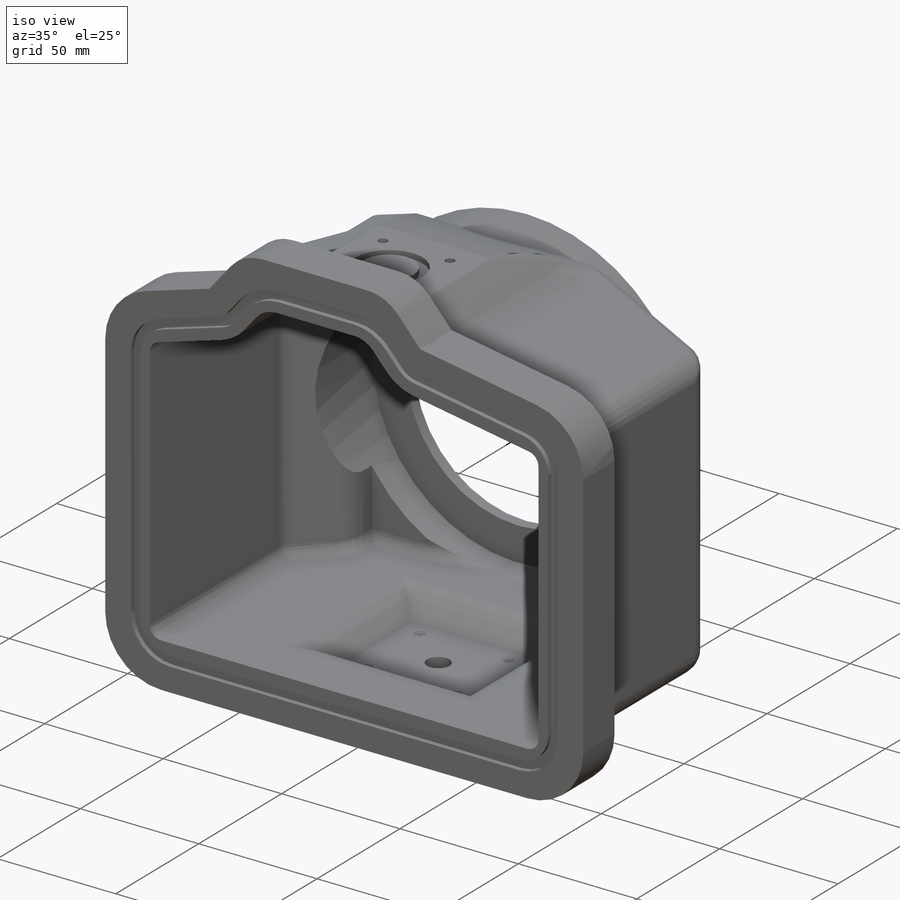
[diagram: iso view]
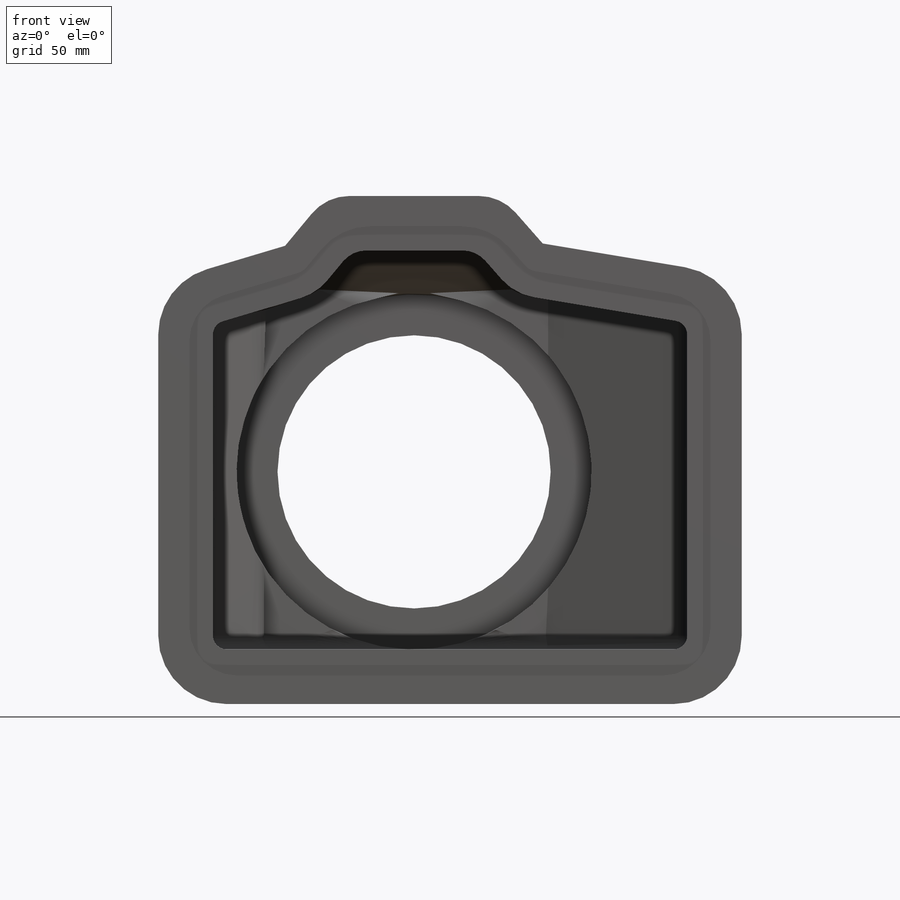
[diagram: front view]
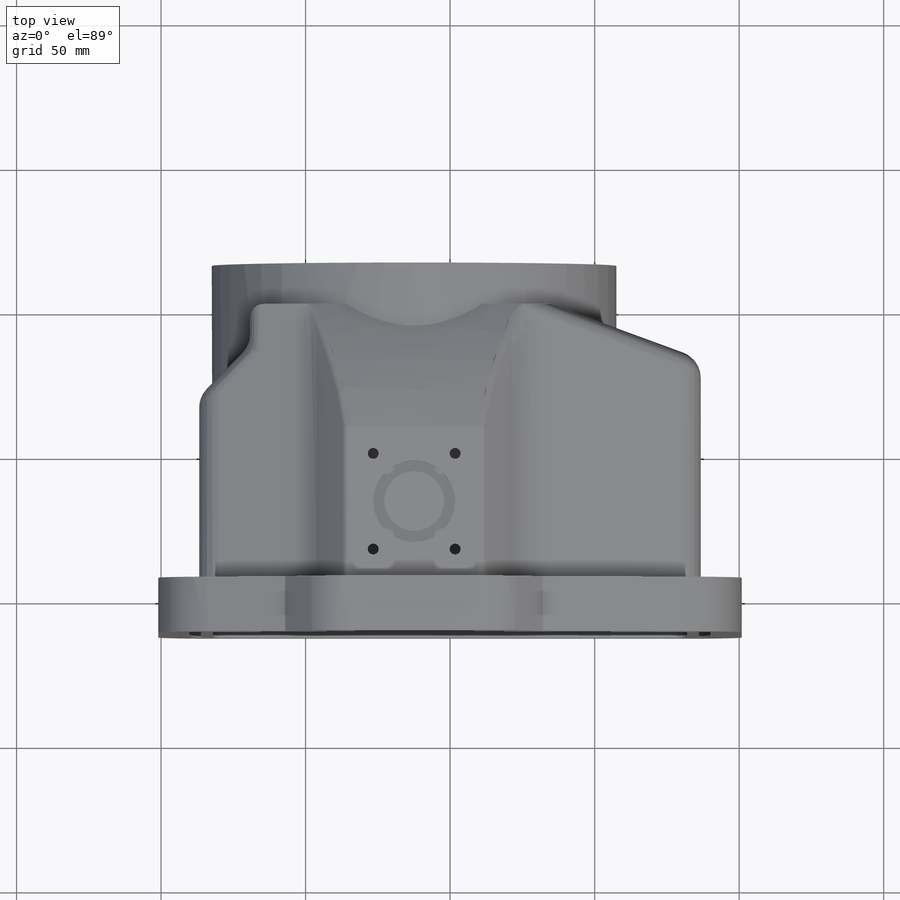
[diagram: top view]
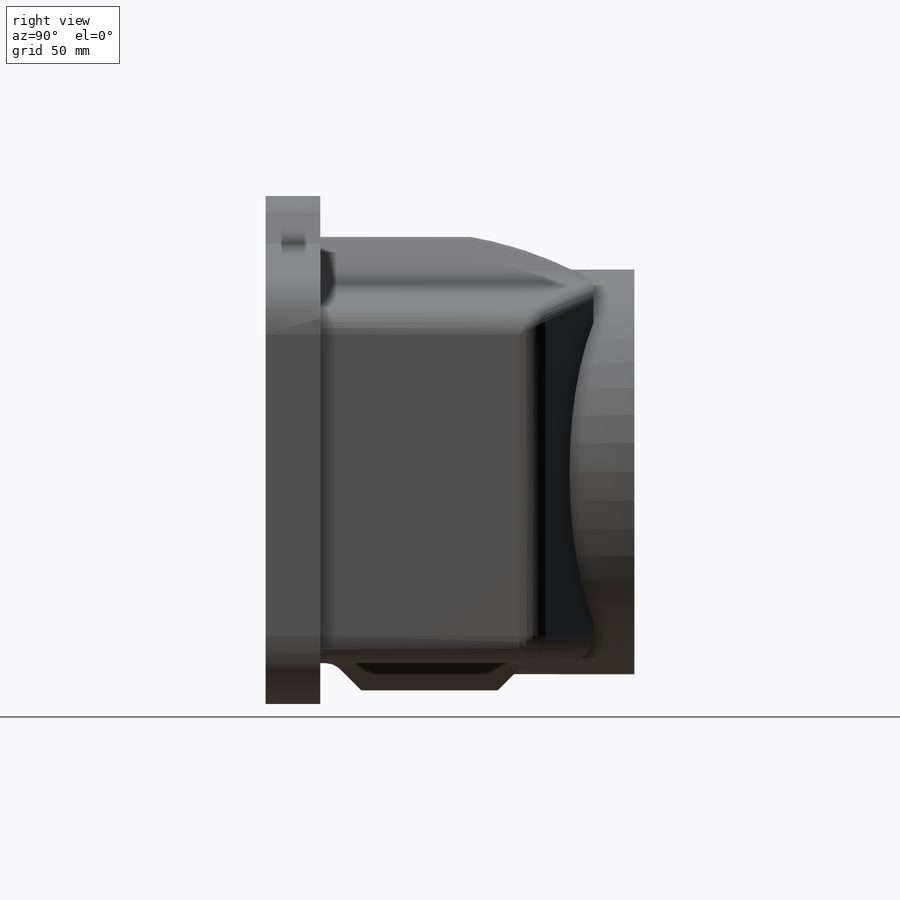
[diagram: right view]
SOLIDWORKS PART (.sldprt)
format: sldprt  version: not decoded by parser v0  size: 1,870,848 bytes
history: native  units: mm
features: sketch x24, cut_extrude x10, fillet x9, plane x6, extrude x5, shell x2, mirror x2, material x1, helix x1, sweep x1 (+8 scaffold rows collapsed)
feature tree (69):
  scaffold x8  (default folders/planes/origin — collapsed)
  material  "Material <sin especificar>"
  plane  "Alzado"
  plane  "Planta"
  plane  "Vista lateral"
  sketch  "Croquis1"
  sketch  "Croquis2"
  sketch  "Imagen de croquis2"
  sketch  "Croquis3"  dims[D1=20.0mm D2=7.5mm D3=15.0mm D6=30.0mm D4=150.0mm D5=117.5mm D7=20.0mm]
  sketch  "Croquis5"  dims[D1=190.0mm D2=72.0mm D3=12.0mm]
  sketch  "Croquis6"
  extrude  "Saliente-Extruir1"  Depth=140mm
  fillet  "Redondeo1"  Radius=10mm
  sketch  "Croquis8"  dims[c1.D1=85.0mm c1.D2=65.0mm c1.D3=190.0mm c1.D4=~33.79949mm c2.D4=45.0deg c2.D5=25.0mm c2.D6=~56.720844mm c3.D6=110.0deg c3.D7=55.0mm c3.D8=~91.81022mm]
  cut_extrude  "Cortar-Extruir1"  [1 undecoded]
  sketch  "Croquis9"  dims[D2=135.0mm D1=60.0mm]
  cut_extrude  "Cortar-Extruir2"  Depth=140mm
  fillet  "Redondeo2"  Radius=3mm
  fillet  "Redondeo3"  Radius=15mm
  sketch  "Croquis10"  dims[c1.D2=~103.077321mm c1.D1=112.0mm c2.D2=70.0mm]
  extrude  "Saliente-Extruir2"  Depth=15mm
  sketch  "Croquis11"  dims[D1=20.0mm D2=50.0mm D3=60.0mm]
  extrude  "Saliente-Extruir3"  Depth=15mm
  fillet  "Redondeo4"  Radius=7.5mm
  fillet  "Redondeo5"  Radius=1mm
  fillet  "Redondeo6"  Radius=10mm
  fillet  "Redondeo9"  Radius=5mm
  fillet  "Redondeo10"  Radius=10mm
  shell  "Vaciado1"  Thickness=5mm
  sketch  "Croquis12"  dims[D1=100.0mm]
  cut_extrude  "Cortar-Extruir3"  [1 undecoded]
  sketch  "Croquis13"  dims[D1=15.0mm]
  extrude  "Saliente-Extruir4"  Depth=5mm
  sketch  "Croquis14"  dims[c1.D1=26.0mm c1.D2=~30.687304mm c1.D3=26.0mm c2.D2=4.0mm c2.D3=2.0mm]
  cut_extrude  "Cortar-Extruir4"  Depth=2.4mm
  sketch  "Croquis16"  dims[c1.D1=30.0mm c1.D2=22.0mm c1.D3=~25.729783mm c1.D4=26.0mm c2.D3=2.0mm]
  cut_extrude  "Cortar-Extruir5"  Depth=2.4mm
  sketch  "Croquis17"  dims[D1=10.0mm]
  cut_extrude  "Cortar-Extruir6"  [1 undecoded]
  sketch  "Croquis19"
  sketch  "Croquis20"  dims[D3=4.0mm D1=34.0mm D2=40.0mm]
  cut_extrude  "Cortar-Extruir7"  [1 undecoded]
  sketch  "Croquis21"
  helix  "Hélice/Espiral1"  Pitch=5mm
  plane  "Plano1"
  sketch  "Croquis22"  dims[D1=0.9mm D2=0.9mm]
  sweep  "Cortar-Barrer1"
  mirror  "Simetría1"
  plane  "Plano2"  Offset=45mm
  shell  "Simetría2"  [1 undecoded]
  sketch  "Croquis23"  dims[D3=4.0mm D1=30.0mm D2=35.0mm]
  cut_extrude  "Cortar-Extruir8"  [1 undecoded]
  plane  "Plano3"
  fillet  "Redondeo11"  Radius=10mm
  sketch  "Croquis25"  dims[c1.D1=3.0mm c1.D2=3.0mm c1.D3=3.0mm c2.D1=10.0mm c2.D2=2.0mm c2.D3=2.0mm]
  mirror  "Escala2"
  cut_extrude  "Cortar-Extruir9"  Depth=2mm
  sketch  "Croquis27"  dims[D2=105.0mm D1=0.0mm]
  sketch  "Croquis28"  dims[D2=140.0mm D1=0.0mm]
  extrude  "Saliente-Extruir5"  Depth=2mm
  sketch  "Croquis29"  dims[c1.D2=105.0mm c1.D3=140.0mm c1.D1=105.0mm c2.D2=105.0mm c2.D1=0.0mm c3.D2=1.25mm c3.D3=1.25mm]
  cut_extrude  "Cortar-Extruir10"  Depth=1.25mm
decode coverage: 39 of 54 modeling features carry decoded parameters
note: ~ marks probable driven/reference dimensions
note: 6 parameter values undecoded
summary: no parameter record found for 6 features
note: suppression state not decoded; provenance and decode notes live in map.json
